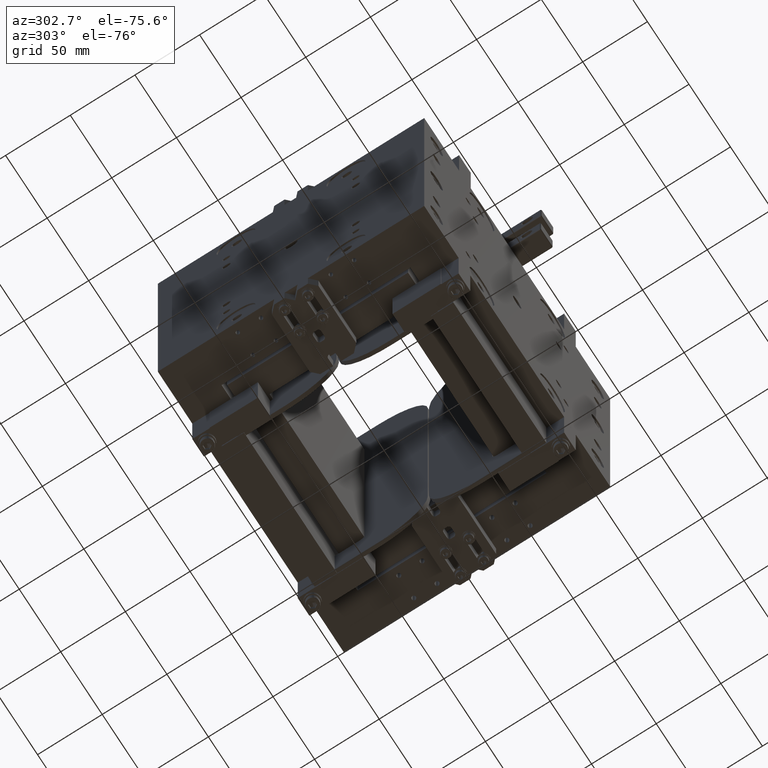
[diagram: clean part render]
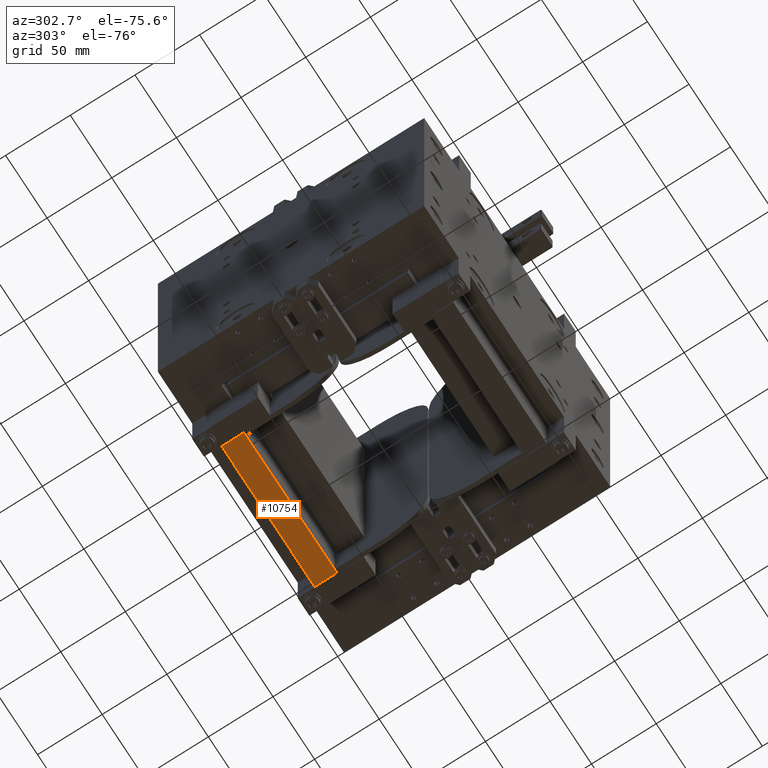
[diagram: same view with one face highlighted and labeled with its STEP entity id]
A machine part, auxiliary view. The second image highlights one B-rep face of the part: STEP entity #10754.
In plain terms, the highlighted planar face has unit normal (0, 0, 1).
Its self-contained STEP definition (entity closure, byte-faithful):
#2224=FACE_OUTER_BOUND('',#3067,.T.);
#3067=EDGE_LOOP('',(#8679,#8680,#8681,#8682));
#3701=LINE('',#17075,#4467);
#3705=LINE('',#17084,#4471);
#3884=LINE('',#17479,#4650);
#3885=LINE('',#17481,#4651);
#4467=VECTOR('',#13822,17.094354496459);
#4471=VECTOR('',#13828,17.094354496459);
#4650=VECTOR('',#14161,112.000000002037);
#4651=VECTOR('',#14164,112.000000002037);
#5383=VERTEX_POINT('',#17072);
#5384=VERTEX_POINT('',#17074);
#5387=VERTEX_POINT('',#17081);
#5388=VERTEX_POINT('',#17083);
#6447=EDGE_CURVE('',#5383,#5384,#3701,.T.);
#6451=EDGE_CURVE('',#5387,#5388,#3705,.T.);
#6652=EDGE_CURVE('',#5387,#5384,#3884,.T.);
#6653=EDGE_CURVE('',#5388,#5383,#3885,.T.);
#8679=ORIENTED_EDGE('',*,*,#6652,.T.);
#8680=ORIENTED_EDGE('',*,*,#6447,.F.);
#8681=ORIENTED_EDGE('',*,*,#6653,.F.);
#8682=ORIENTED_EDGE('',*,*,#6451,.F.);
#9752=PLANE('',#11700);
#10754=ADVANCED_FACE('',(#2224),#9752,.F.);
#11700=AXIS2_PLACEMENT_3D('',#17480,#14162,#14163);
#13822=DIRECTION('',(-1.93770925231245E-11,-1.,0.));
#13828=DIRECTION('',(1.93774659670233E-11,1.,0.));
#14161=DIRECTION('',(-1.,0.,0.));
#14162=DIRECTION('center_axis',(0.,0.,1.));
#14163=DIRECTION('ref_axis',(1.,0.,0.));
#14164=DIRECTION('',(-1.,1.93770925231245E-11,0.));
#17072=CARTESIAN_POINT('',(-56.0000000016868,89.5000000024578,-155.5));
#17074=CARTESIAN_POINT('',(-56.0000000020181,72.4056455059989,-155.5));
#17075=CARTESIAN_POINT('',(-56.0000000016868,89.5000000024578,-155.5));
#17081=CARTESIAN_POINT('',(56.0000000000187,72.4056455038286,-155.5));
#17083=CARTESIAN_POINT('',(56.0000000003499,89.5000000002876,-155.5));
#17084=CARTESIAN_POINT('',(56.0000000000187,72.4056455038286,-155.5));
#17479=CARTESIAN_POINT('',(53.9999999999709,72.4056455043664,-155.5));
#17480=CARTESIAN_POINT('Origin',(-4.59142900194713E-12,79.7296105500648,
-155.5));
#17481=CARTESIAN_POINT('',(56.0000000003499,89.5000000002876,-155.5));